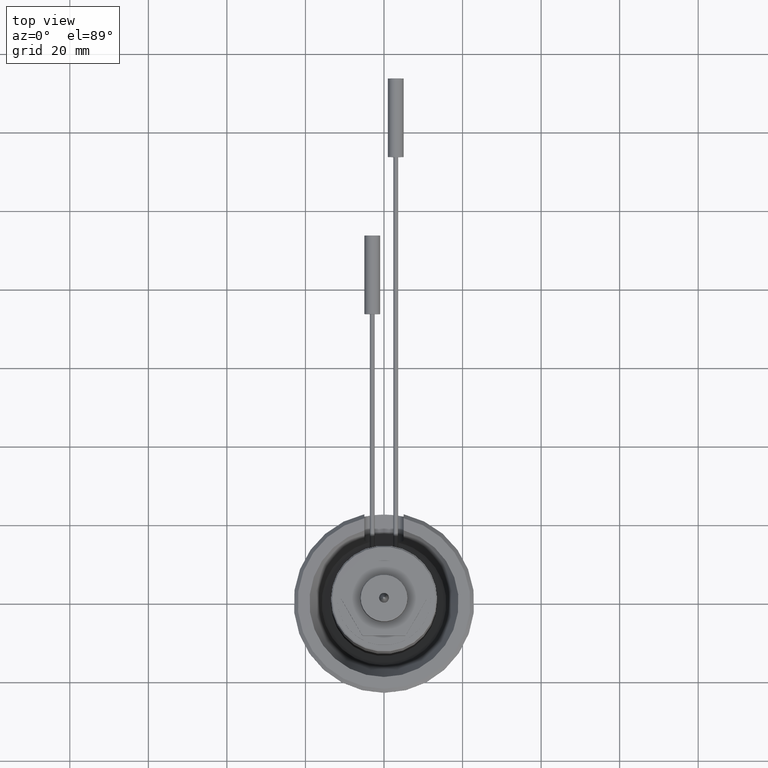
[diagram: clean part render]
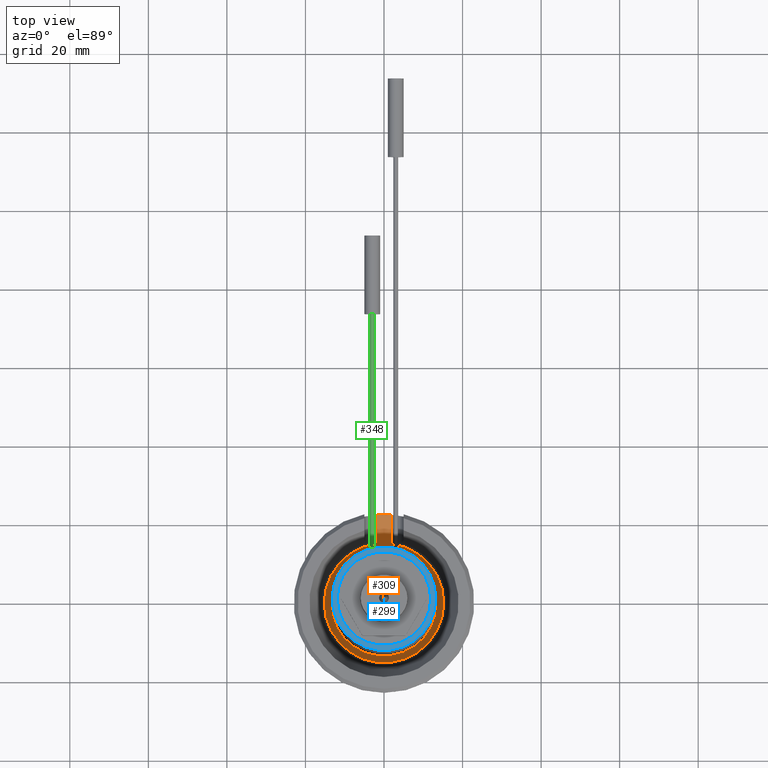
[diagram: same view with three faces highlighted in distinct colors, each labeled with its STEP entity id]
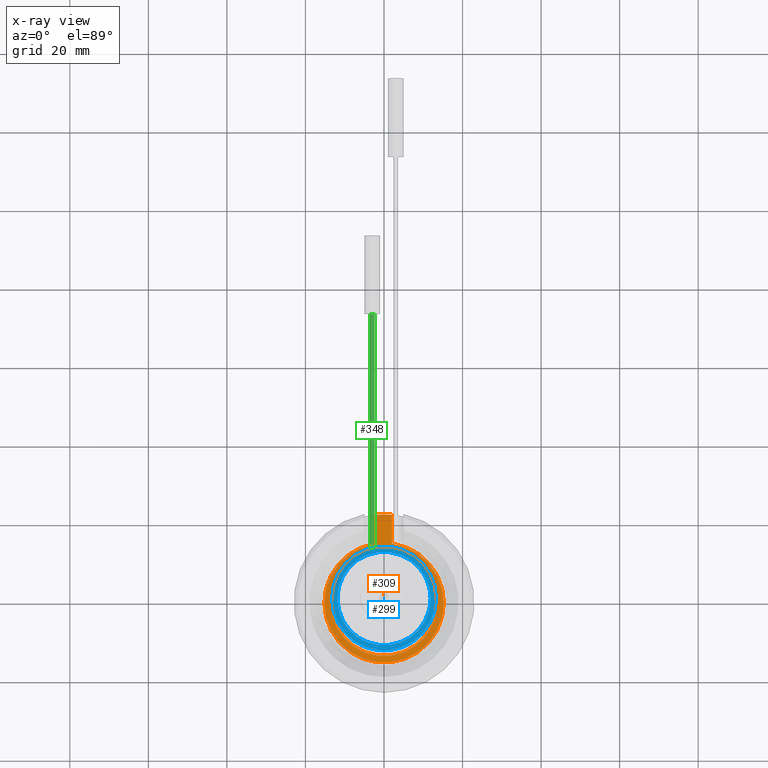
[diagram: x-ray of the same camera — body ghosted, the three highlighted faces saturated]
A machine part, top view with three faces highlighted in distinct colors.
The next image is the same camera in x-ray (body ghosted, the three faces saturated) — at least one of them is partly hidden behind the body in this view.
Their STEP definitions:

[orange] entity #309 — the highlighted planar face has unit normal (0, 0, 1).
#63=LINE('',#1934,#107);
#64=LINE('',#1935,#108);
#107=VECTOR('',#1443,1.);
#108=VECTOR('',#1444,1.);
#209=PLANE('',#1184);
#309=ADVANCED_FACE('',(#410,#411),#209,.T.);
#410=FACE_BOUND('',#488,.T.);
#411=FACE_BOUND('',#489,.T.);
#488=EDGE_LOOP('',(#670,#671,#672,#673));
#489=EDGE_LOOP('',(#674));
#670=ORIENTED_EDGE('',*,*,#958,.F.);
#671=ORIENTED_EDGE('',*,*,#999,.T.);
#672=ORIENTED_EDGE('',*,*,#962,.F.);
#673=ORIENTED_EDGE('',*,*,#1000,.T.);
#674=ORIENTED_EDGE('',*,*,#978,.F.);
#854=VERTEX_POINT('',#1755);
#855=VERTEX_POINT('',#1757);
#858=VERTEX_POINT('',#1780);
#859=VERTEX_POINT('',#1781);
#871=VERTEX_POINT('',#1864);
#958=EDGE_CURVE('',#854,#855,#1062,.T.);
#962=EDGE_CURVE('',#858,#859,#1064,.T.);
#978=EDGE_CURVE('',#871,#871,#1070,.T.);
#999=EDGE_CURVE('',#854,#859,#63,.T.);
#1000=EDGE_CURVE('',#858,#855,#64,.T.);
#1062=CIRCLE('',#1146,22.5);
#1064=CIRCLE('',#1149,15.199833762822);
#1070=CIRCLE('',#1159,13.5000000000001);
#1146=AXIS2_PLACEMENT_3D('',#1756,#1356,#1357);
#1149=AXIS2_PLACEMENT_3D('',#1779,#1363,#1364);
#1159=AXIS2_PLACEMENT_3D('',#1863,#1387,#1388);
#1184=AXIS2_PLACEMENT_3D('',#1936,#1445,#1446);
#1356=DIRECTION('',(0.,0.,-1.));
#1357=DIRECTION('',(1.,0.,0.));
#1363=DIRECTION('',(0.,0.,-1.));
#1364=DIRECTION('',(1.,0.,0.));
#1387=DIRECTION('',(0.,0.,1.));
#1388=DIRECTION('',(1.,0.,0.));
#1443=DIRECTION('',(0.,-1.,0.));
#1444=DIRECTION('',(0.,1.,0.));
#1445=DIRECTION('',(0.,0.,1.));
#1446=DIRECTION('',(1.,0.,0.));
#1755=CARTESIAN_POINT('',(-1.99999999999501,22.4109348310155,15.5));
#1756=CARTESIAN_POINT('',(0.,0.,15.5));
#1757=CARTESIAN_POINT('',(1.99999999999501,22.4109348310155,15.5));
#1779=CARTESIAN_POINT('',(0.,0.,15.5));
#1780=CARTESIAN_POINT('',(1.99999999999501,15.0676788662834,15.5));
#1781=CARTESIAN_POINT('',(-1.99999999999501,15.0676788662834,15.5));
#1863=CARTESIAN_POINT('',(0.,0.,15.5));
#1864=CARTESIAN_POINT('',(13.5000000000001,0.,15.5));
#1934=CARTESIAN_POINT('',(-1.99999999999501,14.3539174589195,15.5));
#1935=CARTESIAN_POINT('',(1.99999999999501,21.9374109684815,15.5));
#1936=CARTESIAN_POINT('',(13.5000000000001,0.,15.5));

[blue] entity #299 — the highlighted planar face has unit normal (0, 0, -1).
#205=PLANE('',#1163);
#299=ADVANCED_FACE('',(#390,#391),#205,.F.);
#390=FACE_BOUND('',#468,.T.);
#391=FACE_BOUND('',#469,.T.);
#468=EDGE_LOOP('',(#634));
#469=EDGE_LOOP('',(#635));
#634=ORIENTED_EDGE('',*,*,#979,.T.);
#635=ORIENTED_EDGE('',*,*,#980,.F.);
#872=VERTEX_POINT('',#1867);
#873=VERTEX_POINT('',#1869);
#979=EDGE_CURVE('',#872,#872,#1071,.T.);
#980=EDGE_CURVE('',#873,#873,#1072,.T.);
#1071=CIRCLE('',#1161,13.2);
#1072=CIRCLE('',#1162,11.9);
#1161=AXIS2_PLACEMENT_3D('',#1866,#1391,#1392);
#1162=AXIS2_PLACEMENT_3D('',#1868,#1393,#1394);
#1163=AXIS2_PLACEMENT_3D('',#1870,#1395,#1396);
#1391=DIRECTION('',(0.,0.,1.));
#1392=DIRECTION('',(-1.,0.,0.));
#1393=DIRECTION('',(0.,0.,1.));
#1394=DIRECTION('',(1.,0.,0.));
#1395=DIRECTION('',(0.,0.,-1.));
#1396=DIRECTION('',(-1.,0.,0.));
#1866=CARTESIAN_POINT('',(0.,0.,79.5));
#1867=CARTESIAN_POINT('',(-13.2,0.,79.5));
#1868=CARTESIAN_POINT('',(0.,0.,79.5));
#1869=CARTESIAN_POINT('',(11.9,0.,79.5));
#1870=CARTESIAN_POINT('',(-13.5,0.,79.5));

[green] entity #348 — the highlighted cylindrical surface (bore or boss wall) has radius 0.6 mm, axis along (0, -1, 0).
#348=ADVANCED_FACE('',(#434,#435),#373,.T.);
#373=CYLINDRICAL_SURFACE('',#1238,0.6);
#434=FACE_BOUND('',#539,.T.);
#435=FACE_BOUND('',#540,.T.);
#539=EDGE_LOOP('',(#801));
#540=EDGE_LOOP('',(#802));
#801=ORIENTED_EDGE('',*,*,#1032,.F.);
#802=ORIENTED_EDGE('',*,*,#1033,.T.);
#901=VERTEX_POINT('',#2055);
#902=VERTEX_POINT('',#2057);
#1032=EDGE_CURVE('',#901,#901,#1098,.T.);
#1033=EDGE_CURVE('',#902,#902,#1099,.T.);
#1098=CIRCLE('',#1236,0.6);
#1099=CIRCLE('',#1237,0.6);
#1236=AXIS2_PLACEMENT_3D('',#2054,#1557,#1558);
#1237=AXIS2_PLACEMENT_3D('',#2056,#1559,#1560);
#1238=AXIS2_PLACEMENT_3D('',#2058,#1561,#1562);
#1557=DIRECTION('',(0.,1.,0.));
#1558=DIRECTION('',(1.,0.,0.));
#1559=DIRECTION('',(0.,1.,0.));
#1560=DIRECTION('',(1.,0.,0.));
#1561=DIRECTION('',(0.,-1.,0.));
#1562=DIRECTION('',(0.,0.,-1.));
#2054=CARTESIAN_POINT('',(-3.,73.5,18.5));
#2055=CARTESIAN_POINT('',(-2.4,73.5,18.5));
#2056=CARTESIAN_POINT('',(-3.,13.5,18.5));
#2057=CARTESIAN_POINT('',(-2.4,13.5,18.5));
#2058=CARTESIAN_POINT('',(-3.,73.5,18.5));